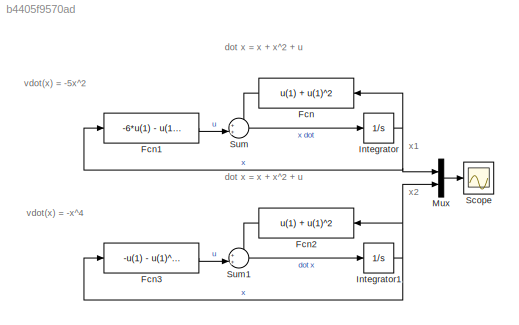
MODEL slx_b4405f9570ad
KIND model
CONFIG AbsTol = auto
CONFIG EnableMultiTasking = on
CONFIG FixedStep = 0.001
CONFIG InitFcn = X0 = randn(1)*10 ;
CONFIG MaxStep = auto
CONFIG MinStep = auto
CONFIG RelTol = 1e-3
CONFIG SampleTimeConstraint = Unconstrained
CONFIG Solver = FixedStepAuto
CONFIG SolverName = FixedStepAuto
CONFIG StartTime = 0.0
CONFIG StopTime = 10.0
BLOCK [Fcn] Fcn
  Expr = u(1) + u(1)^2
BLOCK [Fcn] Fcn1
  Expr = -6*u(1) - u(1)^2
BLOCK [Fcn] Fcn2
  Expr = u(1) + u(1)^2
BLOCK [Fcn] Fcn3
  Expr = -u(1) - u(1)^2-u(1)^3
BLOCK [Integrator] Integrator
  InitialCondition = X0
  Ports = [1, 1]
BLOCK [Integrator] Integrator1
  InitialCondition = X0
  Ports = [1, 1]
BLOCK [Mux] Mux
  DisplayOption = bar
  Inputs = 2
  Ports = [2, 1]
BLOCK [Scope] Scope
  Floating = off
  NumInputPorts = 1
  Ports = [1]
  ScopeSpecificationString = Simulink.scopes.TimeScopeBlockCfg('CurrentConfiguration', extmgr.ConfigurationSet(extmgr.Configuration('Core','General UI',true),extmgr.Configuration('Core','Source UI',true),extmgr.Configuration('Sources','WiredSimulink',true,'DataLoggingSaveFormat','Array','DataLoggingDecimation','1','DataLoggingDecimateData',true),extmgr.Configuration('Visuals','Time Domain',true,'SerializedDisplays',{struct('M...<+1512ch>
BLOCK [Sum] Sum
  IconShape = round
  InputSameDT = off
  Inputs = ++|
  OutDataTypeStr = Inherit: Inherit via internal rule
  Ports = [2, 1]
  SaturateOnIntegerOverflow = off
BLOCK [Sum] Sum1
  IconShape = round
  InputSameDT = off
  Inputs = ++|
  OutDataTypeStr = Inherit: Inherit via internal rule
  Ports = [2, 1]
  SaturateOnIntegerOverflow = off
ANNOTATION (root): dot x = x + x^2 + u
ANNOTATION (root): vdot(x) = -5x^2
ANNOTATION (root): vdot(x) = -x^4
ANNOTATION (root): x1
ANNOTATION (root): x2
LINE Fcn1:1 -> Sum:2
LINE Fcn2:1 -> Sum1:1
LINE Fcn3:1 -> Sum1:2
LINE Fcn:1 -> Sum:1
NET Integrator1:1 -> Fcn2:1, Fcn3:1, Mux:2
NET Integrator:1 -> Fcn1:1, Fcn:1, Mux:1
LINE Mux:1 -> Scope:1
LINE Sum1:1 -> Integrator1:1
LINE Sum:1 -> Integrator:1
note: NET lines group one-source signal fan-out (src -> all destinations, sorted); 1:1 wires keep LINE
